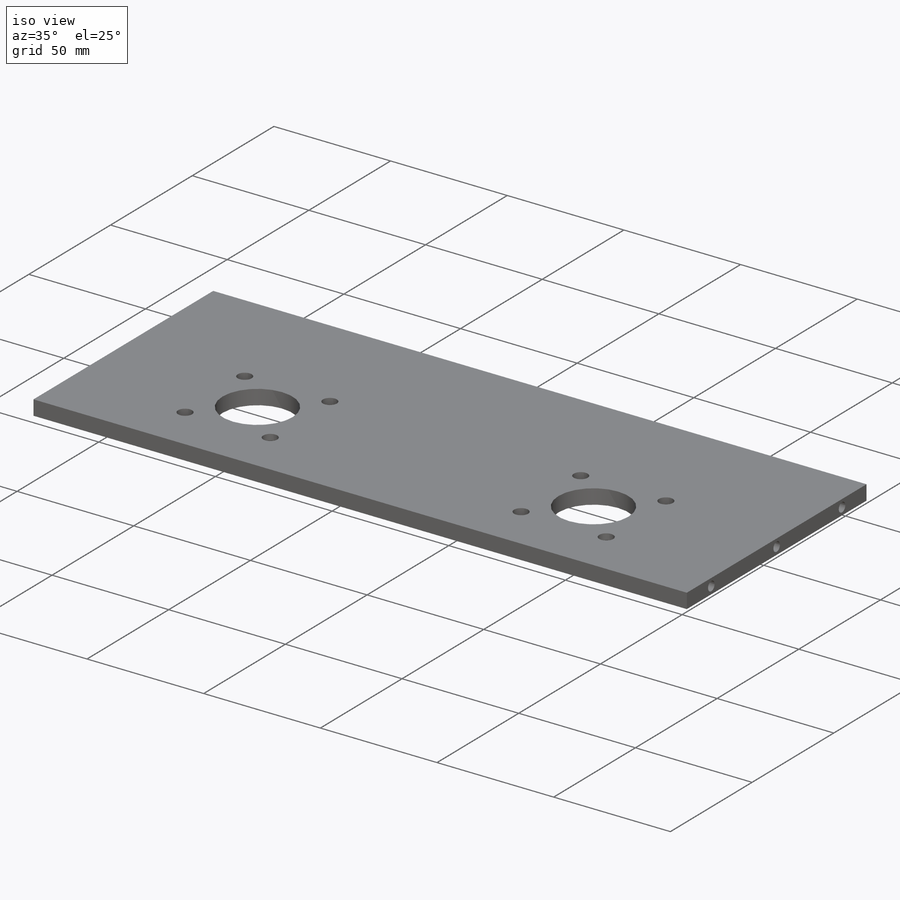
[diagram: iso view]
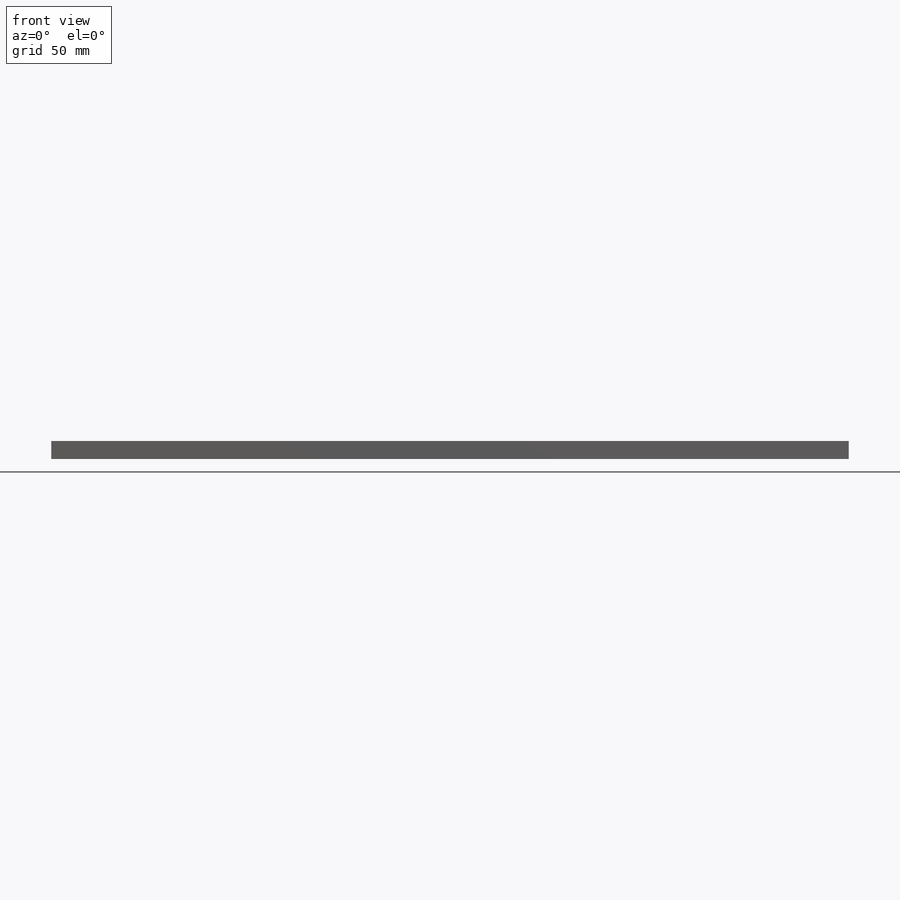
[diagram: front view]
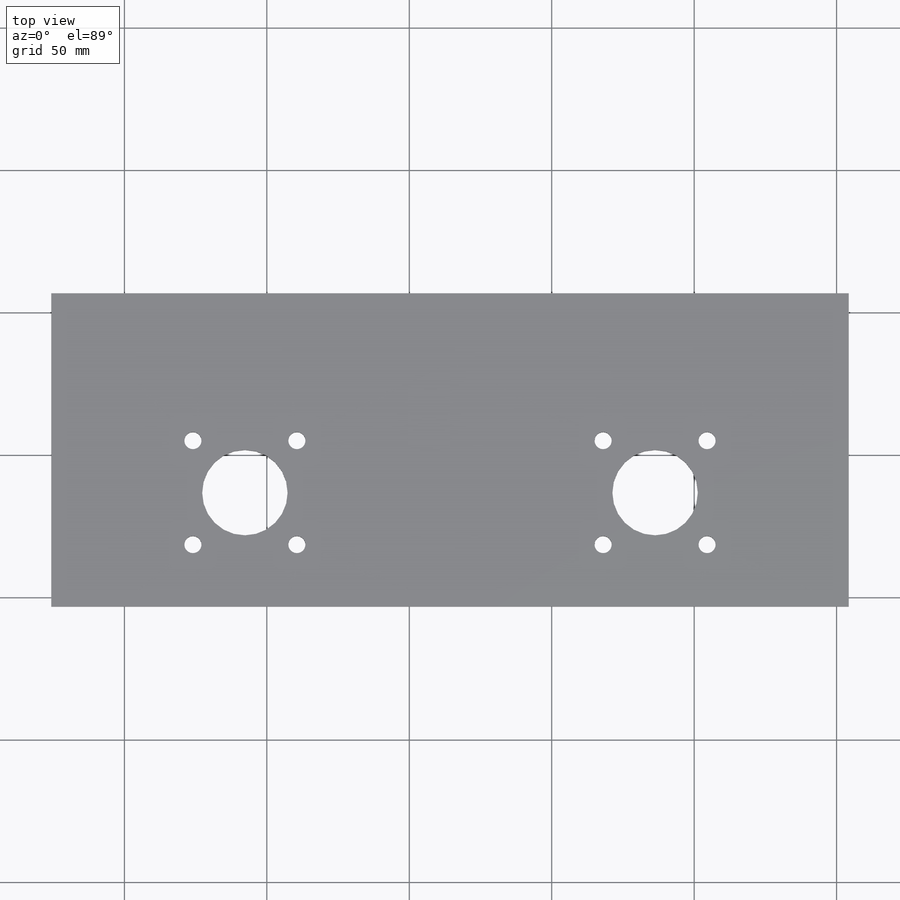
[diagram: top view]
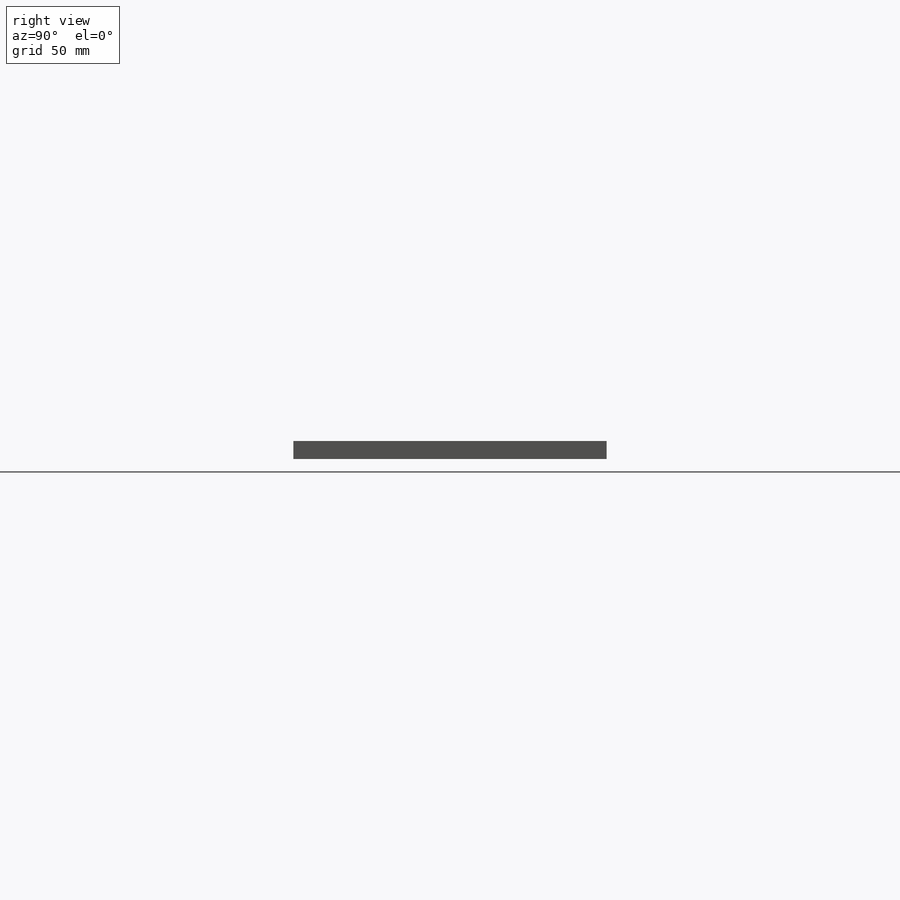
[diagram: right view]
SOLIDWORKS PART (.sldprt)
format: sldprt  version: not decoded by parser v0  size: 234,496 bytes
history: native  units: mm
features: sketch x4, plane x3, cut_extrude x3, material x1, extrude x1 (+10 scaffold rows collapsed)
feature tree (22):
  scaffold x10  (default folders/planes/origin — collapsed)
  material  "Material <sin especificar>"
  plane  "Alzado"
  plane  "Planta"
  plane  "Vista lateral"
  sketch  "Croquis1"  dims[D1=280.0mm D2=110.0mm]
  extrude  "Saliente-Extruir1"  Depth=6.35mm
  sketch  "Croquis2"  dims[c1.D4=10.0mm c1.D5=30.0mm c1.D6=30.0mm c2.D4=6.0mm c2.D9=6.0mm c2.D1=60.0mm c2.D2=20.0mm c2.D3=310.0mm c3.D4=25.0mm c3.D7=72.0mm c3.D8=72.0mm c3.D1=36.5mm c3.D2=40.0mm c3.D3=36.5mm c3.D10=36.5mm c3.D11=36.5mm c4.D2=144.0mm c4.D11=18.25mm c4.D12=18.25mm c4.D13=36.5mm c4.D14=140.0mm c4.D15=36.5mm c4.D16=~36.500026mm c5.D15=36.5mm c5.D16=36.5mm c5.D17=36.5mm c5.D18=36.5mm]
  cut_extrude  "Cortar-Extruir2"  Depth=20mm
  sketch  "Croquis5"  dims[c1.D3=4.0mm c1.D6=4.0mm c1.D2=4.0mm c1.D1=15.0mm c2.D2=6.35mm c2.D4=15.0mm c2.D5=40.0mm c2.D7=40.0mm]
  cut_extrude  "Cortar-Extruir5"  Depth=30mm
  sketch  "Croquis6"  dims[c1.D1=4.0mm c1.D2=4.0mm c1.D3=6.35mm c1.D4=6.35mm c1.D5=15.0mm c1.D6=15.0mm c2.D4=40.0mm c2.D7=40.0mm]
  cut_extrude  "Cortar-Extruir6"  Depth=30mm
decode coverage: 8 of 8 modeling features carry decoded parameters
note: ~ marks probable driven/reference dimensions
note: suppression state not decoded; provenance and decode notes live in map.json
